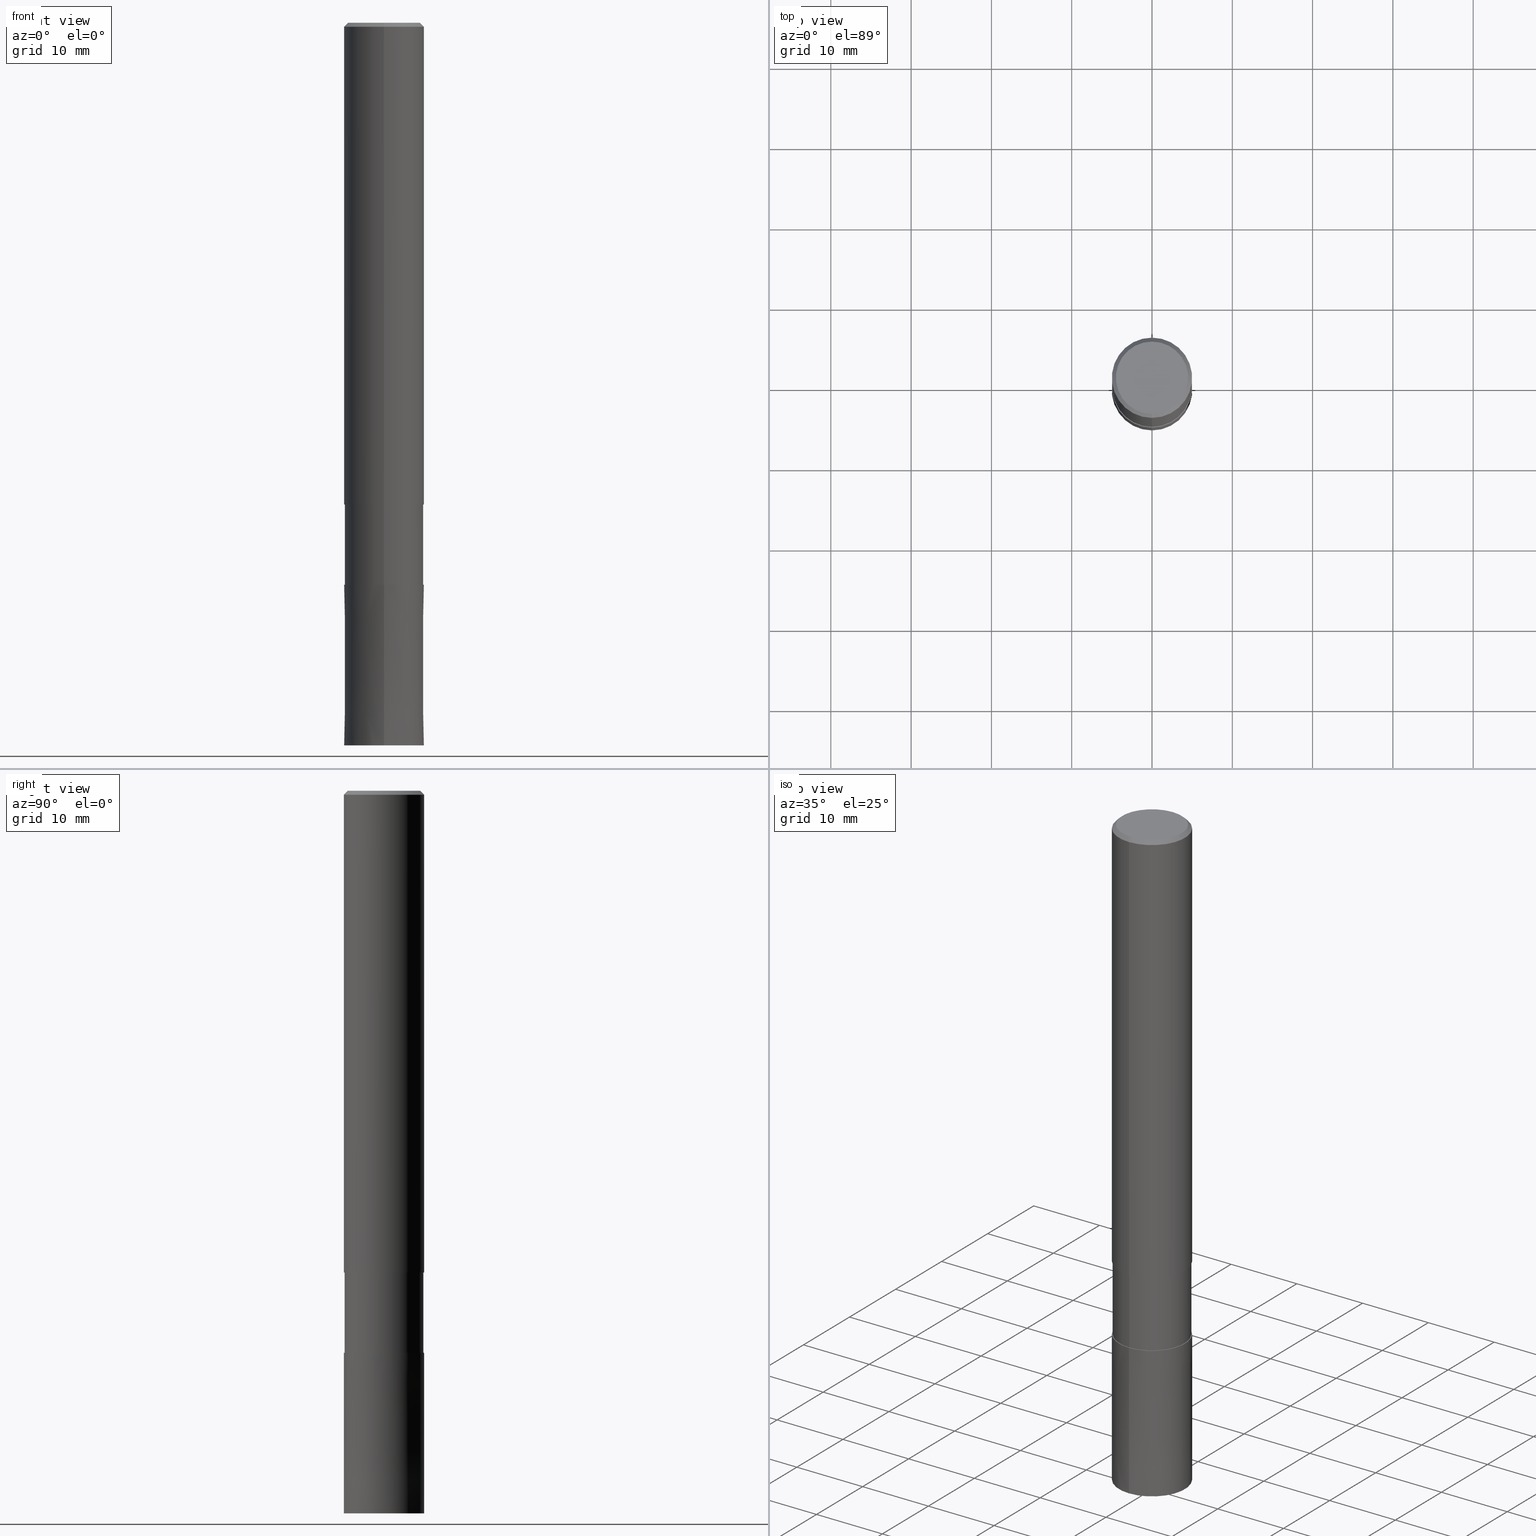
[diagram: canonical four-view strip — front | top / right | iso, engineering-drawing reading convention]
A machine part, canonical four-view strip (front | top / right | iso — engineering-drawing reading convention). The complete STEP part file that produces these views, byte-faithful:
ISO-10303-21;
HEADER;
FILE_DESCRIPTION(('no description'),'unknown implementation level');
FILE_NAME('DLC-AZS3100-300-Huellk.stp','  ',('CIMSOURCE GmbH'),('CADClick - KiM GmbH - www.kimweb.de'),'unknown preprocess','ACIS','unknown authorization');
FILE_SCHEMA(('automotive_design'));
ENDSEC;
DATA;
#1=MECHANICAL_DESIGN_GEOMETRIC_PRESENTATION_REPRESENTATION(' ',(#14,#15,#16,#17,#18,#19,#20,#21,#22,#23,#24,#25,#26,#27,#28,#29,#30,#31,#32,#33,#34,#35,#36,#37,#38,#39,#40,#41,#42,#43,#44,#45,#46,#47,#48,#49,#50,#51,#52,#53,#54,#55,#56,#57,#58,#59,#60,#61,#62,#63,#64),#10);
#2=PRODUCT_DEFINITION_CONTEXT('',#65,'design');
#3=APPLICATION_PROTOCOL_DEFINITION('INTERNATIONAL STANDARD','automotive_design',1994,#65);
#4=PRODUCT_CATEGORY_RELATIONSHIP('NONE','NONE',#66,#67);
#5=SHAPE_DEFINITION_REPRESENTATION(#68,#69);
#6=PRODUCT_DEFINITION_CONTEXT('',#70,'design');
#7=APPLICATION_PROTOCOL_DEFINITION('INTERNATIONAL STANDARD','automotive_design',1994,#70);
#8=PRODUCT_CATEGORY_RELATIONSHIP('NONE','NONE',#71,#72);
#9=SHAPE_DEFINITION_REPRESENTATION(#73,#74);
#10= (GEOMETRIC_REPRESENTATION_CONTEXT(3)GLOBAL_UNCERTAINTY_ASSIGNED_CONTEXT((#77))GLOBAL_UNIT_ASSIGNED_CONTEXT((#79,#80,#81))REPRESENTATION_CONTEXT('NONE','WORKSPACE'));
#14=STYLED_ITEM('',(#83),#84);
#15=STYLED_ITEM('',(#85),#86);
#16=STYLED_ITEM('',(#87),#88);
#17=STYLED_ITEM('',(#89),#90);
#18=STYLED_ITEM('',(#91),#92);
#19=STYLED_ITEM('',(#93),#94);
#20=STYLED_ITEM('',(#95),#96);
#21=STYLED_ITEM('',(#97),#98);
#22=STYLED_ITEM('',(#99),#100);
#23=STYLED_ITEM('',(#101),#102);
#24=STYLED_ITEM('',(#103),#104);
#25=STYLED_ITEM('',(#105),#106);
#26=STYLED_ITEM('',(#107),#108);
#27=STYLED_ITEM('',(#109),#110);
#28=STYLED_ITEM('',(#111),#112);
#29=STYLED_ITEM('',(#113),#114);
#30=STYLED_ITEM('',(#115),#116);
#31=STYLED_ITEM('',(#117),#118);
#32=STYLED_ITEM('',(#119),#120);
#33=STYLED_ITEM('',(#121),#122);
#34=STYLED_ITEM('',(#123),#124);
#35=STYLED_ITEM('',(#125),#126);
#36=STYLED_ITEM('',(#127),#128);
#37=STYLED_ITEM('',(#129),#130);
#38=STYLED_ITEM('',(#131),#132);
#39=STYLED_ITEM('',(#133),#134);
#40=STYLED_ITEM('',(#135),#136);
#41=STYLED_ITEM('',(#137),#138);
#42=STYLED_ITEM('',(#139),#140);
#43=STYLED_ITEM('',(#141),#142);
#44=STYLED_ITEM('',(#143),#144);
#45=STYLED_ITEM('',(#145),#146);
#46=STYLED_ITEM('',(#147),#148);
#47=STYLED_ITEM('',(#149),#150);
#48=STYLED_ITEM('',(#151),#152);
#49=STYLED_ITEM('',(#153),#154);
#50=STYLED_ITEM('',(#155),#156);
#51=STYLED_ITEM('',(#157),#158);
#52=STYLED_ITEM('',(#159),#160);
#53=STYLED_ITEM('',(#161),#162);
#54=STYLED_ITEM('',(#163),#164);
#55=STYLED_ITEM('',(#165),#166);
#56=STYLED_ITEM('',(#167),#168);
#57=STYLED_ITEM('',(#169),#170);
#58=STYLED_ITEM('',(#171),#172);
#59=STYLED_ITEM('',(#173),#174);
#60=STYLED_ITEM('',(#175),#176);
#61=STYLED_ITEM('',(#177),#178);
#62=STYLED_ITEM('',(#179),#180);
#63=STYLED_ITEM('',(#181),#182);
#64=STYLED_ITEM('',(#183),#184);
#65=APPLICATION_CONTEXT(' ');
#66=PRODUCT_CATEGORY('part','NONE');
#67=PRODUCT_RELATED_PRODUCT_CATEGORY('detail',' ',(#185));
#68=PRODUCT_DEFINITION_SHAPE('NONE','NONE',#186);
#69=ADVANCED_BREP_SHAPE_REPRESENTATION('1',(#172,#187),#10);
#70=APPLICATION_CONTEXT(' ');
#71=PRODUCT_CATEGORY('part','NONE');
#72=PRODUCT_RELATED_PRODUCT_CATEGORY('detail',' ',(#188));
#73=PRODUCT_DEFINITION_SHAPE('NONE','NONE',#189);
#74=ADVANCED_BREP_SHAPE_REPRESENTATION('2',(#144,#190),#10);
#77=UNCERTAINTY_MEASURE_WITH_UNIT(LENGTH_MEASURE(1.0E-006),#79,'','');
#79= (CONVERSION_BASED_UNIT('MILLIMETRE',#193)LENGTH_UNIT()NAMED_UNIT(#196));
#80= (NAMED_UNIT(#198)PLANE_ANGLE_UNIT()SI_UNIT($,.RADIAN.));
#81= (NAMED_UNIT(#198)SOLID_ANGLE_UNIT()SI_UNIT($,.STERADIAN.));
#83=PRESENTATION_STYLE_ASSIGNMENT((#204));
#84=EDGE_CURVE('',#128,#88,#205,.T.);
#85=PRESENTATION_STYLE_ASSIGNMENT((#206));
#86=EDGE_CURVE('',#120,#102,#207,.T.);
#87=PRESENTATION_STYLE_ASSIGNMENT((#208));
#88=VERTEX_POINT('',#209);
#89=PRESENTATION_STYLE_ASSIGNMENT((#210));
#90=EDGE_CURVE('',#110,#112,#211,.T.);
#91=PRESENTATION_STYLE_ASSIGNMENT((#212));
#92=VERTEX_POINT('',#213);
#93=PRESENTATION_STYLE_ASSIGNMENT((#214));
#94=EDGE_CURVE('',#92,#102,#215,.T.);
#95=PRESENTATION_STYLE_ASSIGNMENT((#216));
#96=VERTEX_POINT('',#217);
#97=PRESENTATION_STYLE_ASSIGNMENT((#218));
#98=ADVANCED_FACE('',(#219),#220,.T.);
#99=PRESENTATION_STYLE_ASSIGNMENT((#221));
#100=VERTEX_POINT('',#222);
#101=PRESENTATION_STYLE_ASSIGNMENT((#223));
#102=VERTEX_POINT('',#224);
#103=PRESENTATION_STYLE_ASSIGNMENT((#225));
#104=EDGE_CURVE('',#176,#96,#226,.T.);
#105=PRESENTATION_STYLE_ASSIGNMENT((#227));
#106=VERTEX_POINT('',#228);
#107=PRESENTATION_STYLE_ASSIGNMENT((#229));
#108=VERTEX_POINT('',#230);
#109=PRESENTATION_STYLE_ASSIGNMENT((#231));
#110=VERTEX_POINT('',#232);
#111=PRESENTATION_STYLE_ASSIGNMENT((#233));
#112=VERTEX_POINT('',#234);
#113=PRESENTATION_STYLE_ASSIGNMENT((#235));
#114=ADVANCED_FACE('',(#236),#237,.T.);
#115=PRESENTATION_STYLE_ASSIGNMENT((#238));
#116=EDGE_CURVE('',#130,#100,#239,.T.);
#117=PRESENTATION_STYLE_ASSIGNMENT((#240));
#118=EDGE_CURVE('',#88,#128,#241,.T.);
#119=PRESENTATION_STYLE_ASSIGNMENT((#242));
#120=VERTEX_POINT('',#243);
#121=PRESENTATION_STYLE_ASSIGNMENT((#244));
#122=ADVANCED_FACE('',(#245),#246,.T.);
#123=PRESENTATION_STYLE_ASSIGNMENT((#247));
#124=EDGE_CURVE('',#108,#148,#248,.T.);
#125=PRESENTATION_STYLE_ASSIGNMENT((#249));
#126=EDGE_CURVE('',#96,#176,#250,.T.);
#127=PRESENTATION_STYLE_ASSIGNMENT((#251));
#128=VERTEX_POINT('',#252);
#129=PRESENTATION_STYLE_ASSIGNMENT((#253));
#130=VERTEX_POINT('',#254);
#131=PRESENTATION_STYLE_ASSIGNMENT((#255));
#132=ADVANCED_FACE('',(#256),#257,.T.);
#133=PRESENTATION_STYLE_ASSIGNMENT((#258));
#134=EDGE_CURVE('',#112,#148,#259,.T.);
#135=PRESENTATION_STYLE_ASSIGNMENT((#260));
#136=ADVANCED_FACE('',(#261),#262,.T.);
#137=PRESENTATION_STYLE_ASSIGNMENT((#263));
#138=ADVANCED_FACE('',(#264),#265,.T.);
#139=PRESENTATION_STYLE_ASSIGNMENT((#266));
#140=ADVANCED_FACE('',(#267),#268,.T.);
#141=PRESENTATION_STYLE_ASSIGNMENT((#269));
#142=EDGE_CURVE('',#128,#176,#270,.T.);
#143=PRESENTATION_STYLE_ASSIGNMENT((#271));
#144=MANIFOLD_SOLID_BREP('2',#272);
#145=PRESENTATION_STYLE_ASSIGNMENT((#273));
#146=ADVANCED_FACE('',(#274,#275),#276,.T.);
#147=PRESENTATION_STYLE_ASSIGNMENT((#277));
#148=VERTEX_POINT('',#278);
#149=PRESENTATION_STYLE_ASSIGNMENT((#279));
#150=EDGE_CURVE('',#102,#120,#280,.T.);
#151=PRESENTATION_STYLE_ASSIGNMENT((#281));
#152=EDGE_CURVE('',#96,#88,#282,.T.);
#153=PRESENTATION_STYLE_ASSIGNMENT((#283));
#154=ADVANCED_FACE('',(#284),#285,.T.);
#155=PRESENTATION_STYLE_ASSIGNMENT((#286));
#156=ADVANCED_FACE('',(#287),#288,.T.);
#157=PRESENTATION_STYLE_ASSIGNMENT((#289));
#158=EDGE_CURVE('',#108,#110,#290,.T.);
#159=PRESENTATION_STYLE_ASSIGNMENT((#291));
#160=EDGE_CURVE('',#130,#92,#292,.T.);
#161=PRESENTATION_STYLE_ASSIGNMENT((#293));
#162=EDGE_CURVE('',#106,#100,#294,.T.);
#163=PRESENTATION_STYLE_ASSIGNMENT((#295));
#164=ADVANCED_FACE('',(#296),#297,.T.);
#165=PRESENTATION_STYLE_ASSIGNMENT((#298));
#166=ADVANCED_FACE('',(#299),#300,.T.);
#167=PRESENTATION_STYLE_ASSIGNMENT((#301));
#168=EDGE_CURVE('',#100,#130,#302,.T.);
#169=PRESENTATION_STYLE_ASSIGNMENT((#303));
#170=EDGE_CURVE('',#112,#110,#304,.T.);
#171=PRESENTATION_STYLE_ASSIGNMENT((#305));
#172=MANIFOLD_SOLID_BREP('1',#306);
#173=PRESENTATION_STYLE_ASSIGNMENT((#307));
#174=EDGE_CURVE('',#92,#106,#308,.T.);
#175=PRESENTATION_STYLE_ASSIGNMENT((#309));
#176=VERTEX_POINT('',#310);
#177=PRESENTATION_STYLE_ASSIGNMENT((#311));
#178=ADVANCED_FACE('',(#312),#313,.T.);
#179=PRESENTATION_STYLE_ASSIGNMENT((#314));
#180=EDGE_CURVE('',#106,#92,#315,.T.);
#181=PRESENTATION_STYLE_ASSIGNMENT((#316));
#182=EDGE_CURVE('',#120,#106,#317,.T.);
#183=PRESENTATION_STYLE_ASSIGNMENT((#318));
#184=EDGE_CURVE('',#148,#108,#319,.T.);
#185=PRODUCT('1','1','PART-1-DESC',(#320));
#186=PRODUCT_DEFINITION('NONE','NONE',#321,#2);
#187=AXIS2_PLACEMENT_3D('',#322,#323,#324);
#188=PRODUCT('2','2','PART-2-DESC',(#325));
#189=PRODUCT_DEFINITION('NONE','NONE',#326,#6);
#190=AXIS2_PLACEMENT_3D('',#327,#328,#329);
#193=LENGTH_MEASURE_WITH_UNIT(LENGTH_MEASURE(1.0),#330);
#196=DIMENSIONAL_EXPONENTS(1.0,0.0,0.0,0.0,0.0,0.0,0.0);
#198=DIMENSIONAL_EXPONENTS(0.0,0.0,0.0,0.0,0.0,0.0,0.0);
#204=CURVE_STYLE('',#331,POSITIVE_LENGTH_MEASURE(1.0E-006),#332);
#205=CIRCLE('',#333,4.9999);
#206=CURVE_STYLE('',#334,POSITIVE_LENGTH_MEASURE(1.0E-006),#335);
#207=CIRCLE('',#336,4.5);
#208=POINT_STYLE(' ',#337,POSITIVE_LENGTH_MEASURE(1.0E-006),#338);
#209=CARTESIAN_POINT('',(6.1229093084765E-016,-4.9999,-70.0));
#210=CURVE_STYLE('',#339,POSITIVE_LENGTH_MEASURE(1.0E-006),#340);
#211=CIRCLE('',#341,4.90995);
#212=POINT_STYLE(' ',#342,POSITIVE_LENGTH_MEASURE(1.0E-006),#343);
#213=CARTESIAN_POINT('',(6.12303176911189E-016,-5.0,-0.5));
#214=CURVE_STYLE('',#344,POSITIVE_LENGTH_MEASURE(1.0E-006),#345);
#215=LINE('',#346,#347);
#216=POINT_STYLE(' ',#348,POSITIVE_LENGTH_MEASURE(1.0E-006),#349);
#217=CARTESIAN_POINT('',(6.12303176911189E-016,-5.0,-90.0));
#218=SURFACE_STYLE_USAGE(.BOTH.,#350);
#219=FACE_OUTER_BOUND('',#351,.T.);
#220=CYLINDRICAL_SURFACE('',#352,4.90995);
#221=POINT_STYLE(' ',#353,POSITIVE_LENGTH_MEASURE(1.0E-006),#354);
#222=CARTESIAN_POINT('',(0.0,5.0,-60.0));
#223=POINT_STYLE(' ',#355,POSITIVE_LENGTH_MEASURE(1.0E-006),#356);
#224=CARTESIAN_POINT('',(5.5107285922007E-016,-4.5,0.0));
#225=CURVE_STYLE('',#357,POSITIVE_LENGTH_MEASURE(1.0E-006),#358);
#226=CIRCLE('',#359,5.0);
#227=POINT_STYLE(' ',#360,POSITIVE_LENGTH_MEASURE(1.0E-006),#361);
#228=CARTESIAN_POINT('',(0.0,5.0,-0.5));
#229=POINT_STYLE(' ',#362,POSITIVE_LENGTH_MEASURE(1.0E-006),#363);
#230=CARTESIAN_POINT('',(0.0,4.90995,-60.0));
#231=POINT_STYLE(' ',#364,POSITIVE_LENGTH_MEASURE(1.0E-006),#365);
#232=CARTESIAN_POINT('',(0.0,4.90995,-70.0));
#233=POINT_STYLE(' ',#366,POSITIVE_LENGTH_MEASURE(1.0E-006),#367);
#234=CARTESIAN_POINT('',(6.01275596695018E-016,-4.90995,-70.0));
#235=SURFACE_STYLE_USAGE(.BOTH.,#368);
#236=FACE_OUTER_BOUND('',#369,.T.);
#237=PLANE('',#370);
#238=CURVE_STYLE('',#371,POSITIVE_LENGTH_MEASURE(1.0E-006),#372);
#239=CIRCLE('',#373,5.0);
#240=CURVE_STYLE('',#374,POSITIVE_LENGTH_MEASURE(1.0E-006),#375);
#241=CIRCLE('',#376,4.9999);
#242=POINT_STYLE(' ',#377,POSITIVE_LENGTH_MEASURE(1.0E-006),#378);
#243=CARTESIAN_POINT('',(0.0,4.5,0.0));
#244=SURFACE_STYLE_USAGE(.BOTH.,#379);
#245=FACE_OUTER_BOUND('',#380,.T.);
#246=CONICAL_SURFACE('',#381,4.99995,4.99999999994668E-006);
#247=CURVE_STYLE('',#382,POSITIVE_LENGTH_MEASURE(1.0E-006),#383);
#248=CIRCLE('',#384,4.90995);
#249=CURVE_STYLE('',#385,POSITIVE_LENGTH_MEASURE(1.0E-006),#386);
#250=CIRCLE('',#387,5.0);
#251=POINT_STYLE(' ',#388,POSITIVE_LENGTH_MEASURE(1.0E-006),#389);
#252=CARTESIAN_POINT('',(0.0,4.9999,-70.0));
#253=POINT_STYLE(' ',#390,POSITIVE_LENGTH_MEASURE(1.0E-006),#391);
#254=CARTESIAN_POINT('',(6.12303176911189E-016,-5.0,-60.0));
#255=SURFACE_STYLE_USAGE(.BOTH.,#392);
#256=FACE_OUTER_BOUND('',#393,.T.);
#257=CONICAL_SURFACE('',#394,4.75,0.785398163397448);
#258=CURVE_STYLE('',#395,POSITIVE_LENGTH_MEASURE(1.0E-006),#396);
#259=LINE('',#397,#398);
#260=SURFACE_STYLE_USAGE(.BOTH.,#399);
#261=FACE_OUTER_BOUND('',#400,.T.);
#262=PLANE('',#401);
#263=SURFACE_STYLE_USAGE(.BOTH.,#402);
#264=FACE_OUTER_BOUND('',#403,.T.);
#265=PLANE('',#404);
#266=SURFACE_STYLE_USAGE(.BOTH.,#405);
#267=FACE_OUTER_BOUND('',#406,.T.);
#268=CONICAL_SURFACE('',#407,4.99995,4.99999999994668E-006);
#269=CURVE_STYLE('',#408,POSITIVE_LENGTH_MEASURE(1.0E-006),#409);
#270=LINE('',#410,#411);
#271=SURFACE_STYLE_USAGE(.BOTH.,#412);
#272=CLOSED_SHELL('',(#140,#136,#122,#114));
#273=SURFACE_STYLE_USAGE(.BOTH.,#413);
#274=FACE_OUTER_BOUND('',#414,.T.);
#275=FACE_BOUND('',#415,.T.);
#276=PLANE('',#416);
#277=POINT_STYLE(' ',#417,POSITIVE_LENGTH_MEASURE(1.0E-006),#418);
#278=CARTESIAN_POINT('',(6.01275596695018E-016,-4.90995,-60.0));
#279=CURVE_STYLE('',#419,POSITIVE_LENGTH_MEASURE(1.0E-006),#420);
#280=CIRCLE('',#421,4.5);
#281=CURVE_STYLE('',#422,POSITIVE_LENGTH_MEASURE(1.0E-006),#423);
#282=LINE('',#424,#425);
#283=SURFACE_STYLE_USAGE(.BOTH.,#426);
#284=FACE_OUTER_BOUND('',#427,.T.);
#285=CYLINDRICAL_SURFACE('',#428,4.90995);
#286=SURFACE_STYLE_USAGE(.BOTH.,#429);
#287=FACE_OUTER_BOUND('',#430,.T.);
#288=CYLINDRICAL_SURFACE('',#431,5.0);
#289=CURVE_STYLE('',#432,POSITIVE_LENGTH_MEASURE(1.0E-006),#433);
#290=LINE('',#434,#435);
#291=CURVE_STYLE('',#436,POSITIVE_LENGTH_MEASURE(1.0E-006),#437);
#292=LINE('',#438,#439);
#293=CURVE_STYLE('',#440,POSITIVE_LENGTH_MEASURE(1.0E-006),#441);
#294=LINE('',#442,#443);
#295=SURFACE_STYLE_USAGE(.BOTH.,#444);
#296=FACE_OUTER_BOUND('',#445,.T.);
#297=CONICAL_SURFACE('',#446,4.75,0.785398163397448);
#298=SURFACE_STYLE_USAGE(.BOTH.,#447);
#299=FACE_OUTER_BOUND('',#448,.T.);
#300=PLANE('',#449);
#301=CURVE_STYLE('',#450,POSITIVE_LENGTH_MEASURE(1.0E-006),#451);
#302=CIRCLE('',#452,5.0);
#303=CURVE_STYLE('',#453,POSITIVE_LENGTH_MEASURE(1.0E-006),#454);
#304=CIRCLE('',#455,4.90995);
#305=SURFACE_STYLE_USAGE(.BOTH.,#456);
#306=CLOSED_SHELL('',(#154,#156,#164,#146,#138,#132,#178,#98,#166));
#307=CURVE_STYLE('',#457,POSITIVE_LENGTH_MEASURE(1.0E-006),#458);
#308=CIRCLE('',#459,5.0);
#309=POINT_STYLE(' ',#460,POSITIVE_LENGTH_MEASURE(1.0E-006),#461);
#310=CARTESIAN_POINT('',(0.0,5.0,-90.0));
#311=SURFACE_STYLE_USAGE(.BOTH.,#462);
#312=FACE_OUTER_BOUND('',#463,.T.);
#313=CYLINDRICAL_SURFACE('',#464,5.0);
#314=CURVE_STYLE('',#465,POSITIVE_LENGTH_MEASURE(1.0E-006),#466);
#315=CIRCLE('',#467,5.0);
#316=CURVE_STYLE('',#468,POSITIVE_LENGTH_MEASURE(1.0E-006),#469);
#317=LINE('',#470,#471);
#318=CURVE_STYLE('',#472,POSITIVE_LENGTH_MEASURE(1.0E-006),#473);
#319=CIRCLE('',#474,4.90995);
#320=PRODUCT_CONTEXT('',#65,'mechanical');
#321=PRODUCT_DEFINITION_FORMATION_WITH_SPECIFIED_SOURCE(' ','NONE',#185,.NOT_KNOWN.);
#322=CARTESIAN_POINT('',(0.0,0.0,0.0));
#323=DIRECTION('',(0.0,0.0,1.0));
#324=DIRECTION('',(1.0,0.0,0.0));
#325=PRODUCT_CONTEXT('',#70,'mechanical');
#326=PRODUCT_DEFINITION_FORMATION_WITH_SPECIFIED_SOURCE(' ','NONE',#188,.NOT_KNOWN.);
#327=CARTESIAN_POINT('',(0.0,0.0,0.0));
#328=DIRECTION('',(0.0,0.0,1.0));
#329=DIRECTION('',(1.0,0.0,0.0));
#330= (NAMED_UNIT(#196)LENGTH_UNIT()SI_UNIT(.MILLI.,.METRE.));
#331=DRAUGHTING_PRE_DEFINED_CURVE_FONT('continuous');
#332=COLOUR_RGB('',0.800000011920929,0.800000011920929,0.800000011920929);
#333=AXIS2_PLACEMENT_3D('',#476,#477,#478);
#334=DRAUGHTING_PRE_DEFINED_CURVE_FONT('continuous');
#335=COLOUR_RGB('',0.498039215803146,0.498039215803146,0.498039215803146);
#336=AXIS2_PLACEMENT_3D('',#479,#480,#481);
#337=PRE_DEFINED_MARKER('');
#338=COLOUR_RGB('',0.800000011920929,0.800000011920929,0.800000011920929);
#339=DRAUGHTING_PRE_DEFINED_CURVE_FONT('continuous');
#340=COLOUR_RGB('',0.498039215803146,0.498039215803146,0.498039215803146);
#341=AXIS2_PLACEMENT_3D('',#482,#483,#484);
#342=PRE_DEFINED_MARKER('');
#343=COLOUR_RGB('',0.498039215803146,0.498039215803146,0.498039215803146);
#344=DRAUGHTING_PRE_DEFINED_CURVE_FONT('continuous');
#345=COLOUR_RGB('',0.498039215803146,0.498039215803146,0.498039215803146);
#346=CARTESIAN_POINT('',(5.81688018065629E-016,-4.75,-0.25));
#347=VECTOR('',#485,1.0);
#348=PRE_DEFINED_MARKER('');
#349=COLOUR_RGB('',0.800000011920929,0.800000011920929,0.800000011920929);
#350=SURFACE_SIDE_STYLE('',(#486));
#351=EDGE_LOOP('',(#487,#488,#489,#490));
#352=AXIS2_PLACEMENT_3D('',#491,#492,#493);
#353=PRE_DEFINED_MARKER('');
#354=COLOUR_RGB('',0.498039215803146,0.498039215803146,0.498039215803146);
#355=PRE_DEFINED_MARKER('');
#356=COLOUR_RGB('',0.498039215803146,0.498039215803146,0.498039215803146);
#357=DRAUGHTING_PRE_DEFINED_CURVE_FONT('continuous');
#358=COLOUR_RGB('',0.800000011920929,0.800000011920929,0.800000011920929);
#359=AXIS2_PLACEMENT_3D('',#494,#495,#496);
#360=PRE_DEFINED_MARKER('');
#361=COLOUR_RGB('',0.498039215803146,0.498039215803146,0.498039215803146);
#362=PRE_DEFINED_MARKER('');
#363=COLOUR_RGB('',0.498039215803146,0.498039215803146,0.498039215803146);
#364=PRE_DEFINED_MARKER('');
#365=COLOUR_RGB('',0.498039215803146,0.498039215803146,0.498039215803146);
#366=PRE_DEFINED_MARKER('');
#367=COLOUR_RGB('',0.498039215803146,0.498039215803146,0.498039215803146);
#368=SURFACE_SIDE_STYLE('',(#497));
#369=EDGE_LOOP('',(#498,#499));
#370=AXIS2_PLACEMENT_3D('',#500,#501,#502);
#371=DRAUGHTING_PRE_DEFINED_CURVE_FONT('continuous');
#372=COLOUR_RGB('',0.498039215803146,0.498039215803146,0.498039215803146);
#373=AXIS2_PLACEMENT_3D('',#503,#504,#505);
#374=DRAUGHTING_PRE_DEFINED_CURVE_FONT('continuous');
#375=COLOUR_RGB('',0.800000011920929,0.800000011920929,0.800000011920929);
#376=AXIS2_PLACEMENT_3D('',#506,#507,#508);
#377=PRE_DEFINED_MARKER('');
#378=COLOUR_RGB('',0.498039215803146,0.498039215803146,0.498039215803146);
#379=SURFACE_SIDE_STYLE('',(#509));
#380=EDGE_LOOP('',(#510,#511,#512,#513));
#381=AXIS2_PLACEMENT_3D('',#514,#515,#516);
#382=DRAUGHTING_PRE_DEFINED_CURVE_FONT('continuous');
#383=COLOUR_RGB('',0.498039215803146,0.498039215803146,0.498039215803146);
#384=AXIS2_PLACEMENT_3D('',#517,#518,#519);
#385=DRAUGHTING_PRE_DEFINED_CURVE_FONT('continuous');
#386=COLOUR_RGB('',0.800000011920929,0.800000011920929,0.800000011920929);
#387=AXIS2_PLACEMENT_3D('',#520,#521,#522);
#388=PRE_DEFINED_MARKER('');
#389=COLOUR_RGB('',0.800000011920929,0.800000011920929,0.800000011920929);
#390=PRE_DEFINED_MARKER('');
#391=COLOUR_RGB('',0.498039215803146,0.498039215803146,0.498039215803146);
#392=SURFACE_SIDE_STYLE('',(#523));
#393=EDGE_LOOP('',(#524,#525,#526,#527));
#394=AXIS2_PLACEMENT_3D('',#528,#529,#530);
#395=DRAUGHTING_PRE_DEFINED_CURVE_FONT('continuous');
#396=COLOUR_RGB('',0.498039215803146,0.498039215803146,0.498039215803146);
#397=CARTESIAN_POINT('',(6.01275596695018E-016,-4.90995,-65.0));
#398=VECTOR('',#531,1.0);
#399=SURFACE_SIDE_STYLE('',(#532));
#400=EDGE_LOOP('',(#533,#534));
#401=AXIS2_PLACEMENT_3D('',#535,#536,#537);
#402=SURFACE_SIDE_STYLE('',(#538));
#403=EDGE_LOOP('',(#539,#540));
#404=AXIS2_PLACEMENT_3D('',#541,#542,#543);
#405=SURFACE_SIDE_STYLE('',(#544));
#406=EDGE_LOOP('',(#545,#546,#547,#548));
#407=AXIS2_PLACEMENT_3D('',#549,#550,#551);
#408=DRAUGHTING_PRE_DEFINED_CURVE_FONT('continuous');
#409=COLOUR_RGB('',0.800000011920929,0.800000011920929,0.800000011920929);
#410=CARTESIAN_POINT('',(-6.12297053879419E-016,4.99995,-80.0));
#411=VECTOR('',#552,1.0);
#412=SURFACE_SIDE_STYLE('',(#553));
#413=SURFACE_SIDE_STYLE('',(#554));
#414=EDGE_LOOP('',(#555,#556));
#415=EDGE_LOOP('',(#557,#558));
#416=AXIS2_PLACEMENT_3D('',#559,#560,#561);
#417=PRE_DEFINED_MARKER('');
#418=COLOUR_RGB('',0.498039215803146,0.498039215803146,0.498039215803146);
#419=DRAUGHTING_PRE_DEFINED_CURVE_FONT('continuous');
#420=COLOUR_RGB('',0.498039215803146,0.498039215803146,0.498039215803146);
#421=AXIS2_PLACEMENT_3D('',#562,#563,#564);
#422=DRAUGHTING_PRE_DEFINED_CURVE_FONT('continuous');
#423=COLOUR_RGB('',0.800000011920929,0.800000011920929,0.800000011920929);
#424=CARTESIAN_POINT('',(6.12297053879419E-016,-4.99995,-80.0));
#425=VECTOR('',#565,1.0);
#426=SURFACE_SIDE_STYLE('',(#566));
#427=EDGE_LOOP('',(#567,#568,#569,#570));
#428=AXIS2_PLACEMENT_3D('',#571,#572,#573);
#429=SURFACE_SIDE_STYLE('',(#574));
#430=EDGE_LOOP('',(#575,#576,#577,#578));
#431=AXIS2_PLACEMENT_3D('',#579,#580,#581);
#432=DRAUGHTING_PRE_DEFINED_CURVE_FONT('continuous');
#433=COLOUR_RGB('',0.498039215803146,0.498039215803146,0.498039215803146);
#434=CARTESIAN_POINT('',(-6.01275596695018E-016,4.90995,-65.0));
#435=VECTOR('',#582,1.0);
#436=DRAUGHTING_PRE_DEFINED_CURVE_FONT('continuous');
#437=COLOUR_RGB('',0.498039215803146,0.498039215803146,0.498039215803146);
#438=CARTESIAN_POINT('',(6.12303176911189E-016,-5.0,-30.25));
#439=VECTOR('',#583,1.0);
#440=DRAUGHTING_PRE_DEFINED_CURVE_FONT('continuous');
#441=COLOUR_RGB('',0.498039215803146,0.498039215803146,0.498039215803146);
#442=CARTESIAN_POINT('',(-6.12303176911189E-016,5.0,-30.25));
#443=VECTOR('',#584,1.0);
#444=SURFACE_SIDE_STYLE('',(#585));
#445=EDGE_LOOP('',(#586,#587,#588,#589));
#446=AXIS2_PLACEMENT_3D('',#590,#591,#592);
#447=SURFACE_SIDE_STYLE('',(#593));
#448=EDGE_LOOP('',(#594,#595));
#449=AXIS2_PLACEMENT_3D('',#596,#597,#598);
#450=DRAUGHTING_PRE_DEFINED_CURVE_FONT('continuous');
#451=COLOUR_RGB('',0.498039215803146,0.498039215803146,0.498039215803146);
#452=AXIS2_PLACEMENT_3D('',#599,#600,#601);
#453=DRAUGHTING_PRE_DEFINED_CURVE_FONT('continuous');
#454=COLOUR_RGB('',0.498039215803146,0.498039215803146,0.498039215803146);
#455=AXIS2_PLACEMENT_3D('',#602,#603,#604);
#456=SURFACE_SIDE_STYLE('',(#605));
#457=DRAUGHTING_PRE_DEFINED_CURVE_FONT('continuous');
#458=COLOUR_RGB('',0.498039215803146,0.498039215803146,0.498039215803146);
#459=AXIS2_PLACEMENT_3D('',#606,#607,#608);
#460=PRE_DEFINED_MARKER('');
#461=COLOUR_RGB('',0.800000011920929,0.800000011920929,0.800000011920929);
#462=SURFACE_SIDE_STYLE('',(#609));
#463=EDGE_LOOP('',(#610,#611,#612,#613));
#464=AXIS2_PLACEMENT_3D('',#614,#615,#616);
#465=DRAUGHTING_PRE_DEFINED_CURVE_FONT('continuous');
#466=COLOUR_RGB('',0.498039215803146,0.498039215803146,0.498039215803146);
#467=AXIS2_PLACEMENT_3D('',#617,#618,#619);
#468=DRAUGHTING_PRE_DEFINED_CURVE_FONT('continuous');
#469=COLOUR_RGB('',0.498039215803146,0.498039215803146,0.498039215803146);
#470=CARTESIAN_POINT('',(-5.81688018065629E-016,4.75,-0.25));
#471=VECTOR('',#620,1.0);
#472=DRAUGHTING_PRE_DEFINED_CURVE_FONT('continuous');
#473=COLOUR_RGB('',0.498039215803146,0.498039215803146,0.498039215803146);
#474=AXIS2_PLACEMENT_3D('',#621,#622,#623);
#476=CARTESIAN_POINT('',(0.0,0.0,-70.0));
#477=DIRECTION('',(0.0,0.0,-1.0));
#478=DIRECTION('',(0.0,1.0,0.0));
#479=CARTESIAN_POINT('',(0.0,0.0,0.0));
#480=DIRECTION('',(0.0,0.0,-1.0));
#481=DIRECTION('',(0.0,1.0,0.0));
#482=CARTESIAN_POINT('',(0.0,0.0,-70.0));
#483=DIRECTION('',(0.0,0.0,-1.0));
#484=DIRECTION('',(0.0,1.0,0.0));
#485=DIRECTION('',(-8.65927457071936E-017,0.707106781186548,0.707106781186548));
#486=SURFACE_STYLE_FILL_AREA(#624);
#487=ORIENTED_EDGE('',*,*,#158,.T.);
#488=ORIENTED_EDGE('',*,*,#170,.F.);
#489=ORIENTED_EDGE('',*,*,#134,.T.);
#490=ORIENTED_EDGE('',*,*,#184,.T.);
#491=CARTESIAN_POINT('',(0.0,0.0,-65.0));
#492=DIRECTION('',(-0.0,-0.0,1.0));
#493=DIRECTION('',(0.0,1.0,0.0));
#494=CARTESIAN_POINT('',(0.0,0.0,-90.0));
#495=DIRECTION('',(0.0,0.0,-1.0));
#496=DIRECTION('',(0.0,1.0,0.0));
#497=SURFACE_STYLE_FILL_AREA(#625);
#498=ORIENTED_EDGE('',*,*,#104,.T.);
#499=ORIENTED_EDGE('',*,*,#126,.T.);
#500=CARTESIAN_POINT('',(0.0,2.4975,-90.0));
#501=DIRECTION('',(0.0,0.0,-1.0));
#502=DIRECTION('',(0.0,1.0,0.0));
#503=CARTESIAN_POINT('',(0.0,0.0,-60.0));
#504=DIRECTION('',(0.0,0.0,-1.0));
#505=DIRECTION('',(0.0,1.0,0.0));
#506=CARTESIAN_POINT('',(0.0,0.0,-70.0));
#507=DIRECTION('',(0.0,0.0,-1.0));
#508=DIRECTION('',(0.0,1.0,0.0));
#509=SURFACE_STYLE_FILL_AREA(#626);
#510=ORIENTED_EDGE('',*,*,#142,.T.);
#511=ORIENTED_EDGE('',*,*,#126,.F.);
#512=ORIENTED_EDGE('',*,*,#152,.T.);
#513=ORIENTED_EDGE('',*,*,#118,.T.);
#514=CARTESIAN_POINT('',(0.0,0.0,-80.0));
#515=DIRECTION('',(0.0,-0.0,-1.0));
#516=DIRECTION('',(0.0,1.0,0.0));
#517=CARTESIAN_POINT('',(0.0,0.0,-60.0));
#518=DIRECTION('',(0.0,0.0,-1.0));
#519=DIRECTION('',(0.0,1.0,0.0));
#520=CARTESIAN_POINT('',(0.0,0.0,-90.0));
#521=DIRECTION('',(0.0,0.0,-1.0));
#522=DIRECTION('',(0.0,1.0,0.0));
#523=SURFACE_STYLE_FILL_AREA(#627);
#524=ORIENTED_EDGE('',*,*,#182,.T.);
#525=ORIENTED_EDGE('',*,*,#174,.F.);
#526=ORIENTED_EDGE('',*,*,#94,.T.);
#527=ORIENTED_EDGE('',*,*,#150,.T.);
#528=CARTESIAN_POINT('',(0.0,0.0,-0.25));
#529=DIRECTION('',(0.0,-0.0,-1.0));
#530=DIRECTION('',(0.0,1.0,0.0));
#531=DIRECTION('',(-0.0,-0.0,1.0));
#532=SURFACE_STYLE_FILL_AREA(#628);
#533=ORIENTED_EDGE('',*,*,#84,.F.);
#534=ORIENTED_EDGE('',*,*,#118,.F.);
#535=CARTESIAN_POINT('',(0.0,2.49995,-70.0));
#536=DIRECTION('',(-0.0,0.0,1.0));
#537=DIRECTION('',(0.0,-1.0,0.0));
#538=SURFACE_STYLE_FILL_AREA(#629);
#539=ORIENTED_EDGE('',*,*,#86,.F.);
#540=ORIENTED_EDGE('',*,*,#150,.F.);
#541=CARTESIAN_POINT('',(0.0,2.25,0.0));
#542=DIRECTION('',(-0.0,0.0,1.0));
#543=DIRECTION('',(0.0,-1.0,0.0));
#544=SURFACE_STYLE_FILL_AREA(#630);
#545=ORIENTED_EDGE('',*,*,#142,.F.);
#546=ORIENTED_EDGE('',*,*,#84,.T.);
#547=ORIENTED_EDGE('',*,*,#152,.F.);
#548=ORIENTED_EDGE('',*,*,#104,.F.);
#549=CARTESIAN_POINT('',(0.0,0.0,-80.0));
#550=DIRECTION('',(0.0,-0.0,-1.0));
#551=DIRECTION('',(0.0,1.0,0.0));
#552=DIRECTION('',(-6.12303176902108E-022,4.99999999992585E-006,-0.9999999999875));
#553=SURFACE_STYLE_FILL_AREA(#631);
#554=SURFACE_STYLE_FILL_AREA(#632);
#555=ORIENTED_EDGE('',*,*,#168,.T.);
#556=ORIENTED_EDGE('',*,*,#116,.T.);
#557=ORIENTED_EDGE('',*,*,#124,.F.);
#558=ORIENTED_EDGE('',*,*,#184,.F.);
#559=CARTESIAN_POINT('',(0.0,2.5,-60.0));
#560=DIRECTION('',(0.0,0.0,-1.0));
#561=DIRECTION('',(0.0,1.0,0.0));
#562=CARTESIAN_POINT('',(0.0,0.0,0.0));
#563=DIRECTION('',(0.0,0.0,-1.0));
#564=DIRECTION('',(0.0,1.0,0.0));
#565=DIRECTION('',(-6.12303176902108E-022,4.99999999992585E-006,0.9999999999875));
#566=SURFACE_STYLE_FILL_AREA(#633);
#567=ORIENTED_EDGE('',*,*,#158,.F.);
#568=ORIENTED_EDGE('',*,*,#124,.T.);
#569=ORIENTED_EDGE('',*,*,#134,.F.);
#570=ORIENTED_EDGE('',*,*,#90,.F.);
#571=CARTESIAN_POINT('',(0.0,0.0,-65.0));
#572=DIRECTION('',(-0.0,-0.0,1.0));
#573=DIRECTION('',(0.0,1.0,0.0));
#574=SURFACE_STYLE_FILL_AREA(#634);
#575=ORIENTED_EDGE('',*,*,#162,.F.);
#576=ORIENTED_EDGE('',*,*,#180,.T.);
#577=ORIENTED_EDGE('',*,*,#160,.F.);
#578=ORIENTED_EDGE('',*,*,#168,.F.);
#579=CARTESIAN_POINT('',(0.0,0.0,-30.25));
#580=DIRECTION('',(-0.0,-0.0,1.0));
#581=DIRECTION('',(0.0,1.0,0.0));
#582=DIRECTION('',(0.0,0.0,-1.0));
#583=DIRECTION('',(-0.0,-0.0,1.0));
#584=DIRECTION('',(0.0,0.0,-1.0));
#585=SURFACE_STYLE_FILL_AREA(#635);
#586=ORIENTED_EDGE('',*,*,#182,.F.);
#587=ORIENTED_EDGE('',*,*,#86,.T.);
#588=ORIENTED_EDGE('',*,*,#94,.F.);
#589=ORIENTED_EDGE('',*,*,#180,.F.);
#590=CARTESIAN_POINT('',(0.0,0.0,-0.25));
#591=DIRECTION('',(0.0,-0.0,-1.0));
#592=DIRECTION('',(0.0,1.0,0.0));
#593=SURFACE_STYLE_FILL_AREA(#636);
#594=ORIENTED_EDGE('',*,*,#90,.T.);
#595=ORIENTED_EDGE('',*,*,#170,.T.);
#596=CARTESIAN_POINT('',(0.0,2.454975,-70.0));
#597=DIRECTION('',(0.0,0.0,-1.0));
#598=DIRECTION('',(0.0,1.0,0.0));
#599=CARTESIAN_POINT('',(0.0,0.0,-60.0));
#600=DIRECTION('',(0.0,0.0,-1.0));
#601=DIRECTION('',(0.0,1.0,0.0));
#602=CARTESIAN_POINT('',(0.0,0.0,-70.0));
#603=DIRECTION('',(0.0,0.0,-1.0));
#604=DIRECTION('',(0.0,1.0,0.0));
#605=SURFACE_STYLE_FILL_AREA(#637);
#606=CARTESIAN_POINT('',(0.0,0.0,-0.5));
#607=DIRECTION('',(0.0,0.0,-1.0));
#608=DIRECTION('',(0.0,1.0,0.0));
#609=SURFACE_STYLE_FILL_AREA(#638);
#610=ORIENTED_EDGE('',*,*,#162,.T.);
#611=ORIENTED_EDGE('',*,*,#116,.F.);
#612=ORIENTED_EDGE('',*,*,#160,.T.);
#613=ORIENTED_EDGE('',*,*,#174,.T.);
#614=CARTESIAN_POINT('',(0.0,0.0,-30.25));
#615=DIRECTION('',(-0.0,-0.0,1.0));
#616=DIRECTION('',(0.0,1.0,0.0));
#617=CARTESIAN_POINT('',(0.0,0.0,-0.5));
#618=DIRECTION('',(0.0,0.0,-1.0));
#619=DIRECTION('',(0.0,1.0,0.0));
#620=DIRECTION('',(-8.65927457071936E-017,0.707106781186548,-0.707106781186548));
#621=CARTESIAN_POINT('',(0.0,0.0,-60.0));
#622=DIRECTION('',(0.0,0.0,-1.0));
#623=DIRECTION('',(0.0,1.0,0.0));
#624=FILL_AREA_STYLE('',(#639));
#625=FILL_AREA_STYLE('',(#640));
#626=FILL_AREA_STYLE('',(#641));
#627=FILL_AREA_STYLE('',(#642));
#628=FILL_AREA_STYLE('',(#643));
#629=FILL_AREA_STYLE('',(#644));
#630=FILL_AREA_STYLE('',(#645));
#631=FILL_AREA_STYLE('',(#646));
#632=FILL_AREA_STYLE('',(#647));
#633=FILL_AREA_STYLE('',(#648));
#634=FILL_AREA_STYLE('',(#649));
#635=FILL_AREA_STYLE('',(#650));
#636=FILL_AREA_STYLE('',(#651));
#637=FILL_AREA_STYLE('',(#652));
#638=FILL_AREA_STYLE('',(#653));
#639=FILL_AREA_STYLE_COLOUR('',#654);
#640=FILL_AREA_STYLE_COLOUR('',#655);
#641=FILL_AREA_STYLE_COLOUR('',#656);
#642=FILL_AREA_STYLE_COLOUR('',#657);
#643=FILL_AREA_STYLE_COLOUR('',#658);
#644=FILL_AREA_STYLE_COLOUR('',#659);
#645=FILL_AREA_STYLE_COLOUR('',#660);
#646=FILL_AREA_STYLE_COLOUR('',#661);
#647=FILL_AREA_STYLE_COLOUR('',#662);
#648=FILL_AREA_STYLE_COLOUR('',#663);
#649=FILL_AREA_STYLE_COLOUR('',#664);
#650=FILL_AREA_STYLE_COLOUR('',#665);
#651=FILL_AREA_STYLE_COLOUR('',#666);
#652=FILL_AREA_STYLE_COLOUR('',#667);
#653=FILL_AREA_STYLE_COLOUR('',#668);
#654=COLOUR_RGB('',0.498039215803146,0.498039215803146,0.498039215803146);
#655=COLOUR_RGB('',0.800000011920929,0.800000011920929,0.800000011920929);
#656=COLOUR_RGB('',0.800000011920929,0.800000011920929,0.800000011920929);
#657=COLOUR_RGB('',0.498039215803146,0.498039215803146,0.498039215803146);
#658=COLOUR_RGB('',0.800000011920929,0.800000011920929,0.800000011920929);
#659=COLOUR_RGB('',0.498039215803146,0.498039215803146,0.498039215803146);
#660=COLOUR_RGB('',0.800000011920929,0.800000011920929,0.800000011920929);
#661=COLOUR_RGB('',0.800000011920929,0.800000011920929,0.800000011920929);
#662=COLOUR_RGB('',0.498039215803146,0.498039215803146,0.498039215803146);
#663=COLOUR_RGB('',0.498039215803146,0.498039215803146,0.498039215803146);
#664=COLOUR_RGB('',0.498039215803146,0.498039215803146,0.498039215803146);
#665=COLOUR_RGB('',0.498039215803146,0.498039215803146,0.498039215803146);
#666=COLOUR_RGB('',0.498039215803146,0.498039215803146,0.498039215803146);
#667=COLOUR_RGB('',0.498039215803146,0.498039215803146,0.498039215803146);
#668=COLOUR_RGB('',0.498039215803146,0.498039215803146,0.498039215803146);
#669=AXIS2_PLACEMENT_3D('PCS',#670,#671,#672);
#670=CARTESIAN_POINT('',(0.0,0.0,0.0));
#671=DIRECTION('',(0.0,0.0,1.0));
#672=DIRECTION('',(1.0,0.0,0.0));
#673=AXIS2_PLACEMENT_3D('CIP',#674,#675,#676);
#674=CARTESIAN_POINT('',(0.0,0.0,-90.0));
#675=DIRECTION('',(0.0,0.0,1.0));
#676=DIRECTION('',(1.0,0.0,0.0));
#677=AXIS2_PLACEMENT_3D('CRP',#678,#679,#680);
#678=CARTESIAN_POINT('',(-5.0,0.0,-90.0));
#679=DIRECTION('',(0.0,0.0,1.0));
#680=DIRECTION('',(1.0,0.0,0.0));
#681=AXIS2_PLACEMENT_3D('MCS',#682,#683,#684);
#682=CARTESIAN_POINT('',(0.0,0.0,-60.0));
#683=DIRECTION('',(0.0,0.0,1.0));
#684=DIRECTION('',(1.0,0.0,0.0));
#685=CONSTRUCTIVE_GEOMETRY_REPRESENTATION_RELATIONSHIP('coordinate systems',$,#69,#686);
#686=CONSTRUCTIVE_GEOMETRY_REPRESENTATION('coordinate systems',(#669,#673,#677,#681),#10);
ENDSEC;
END-ISO-10303-21;
